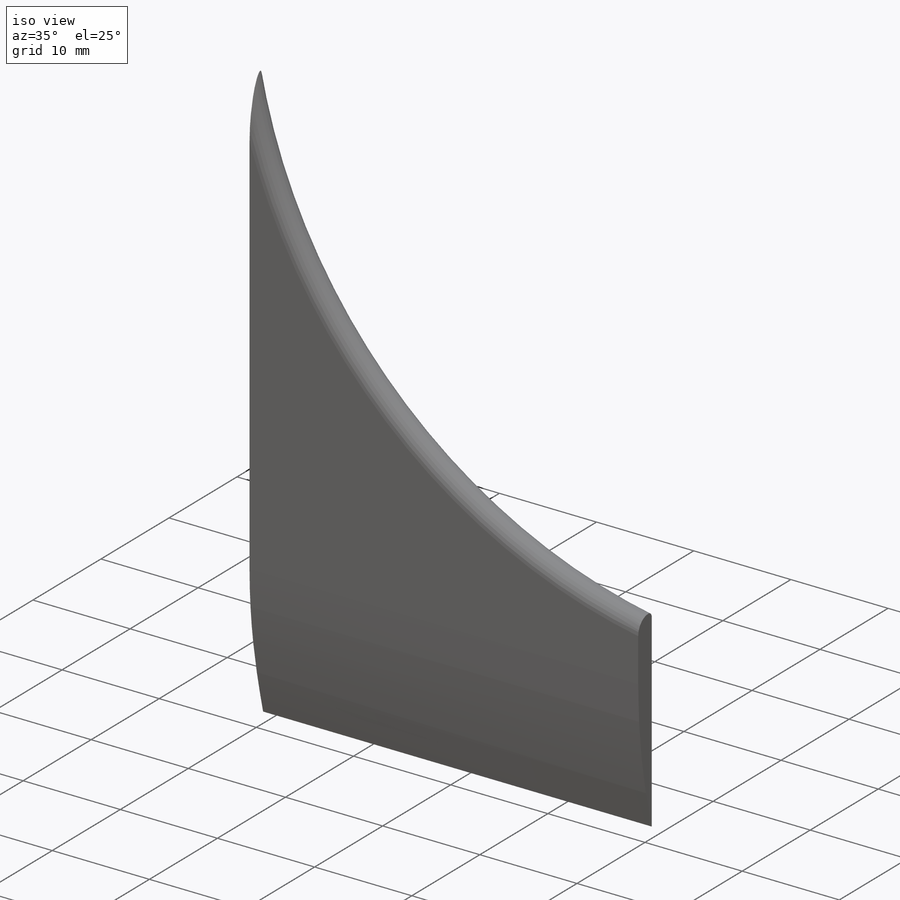
[diagram: iso view]
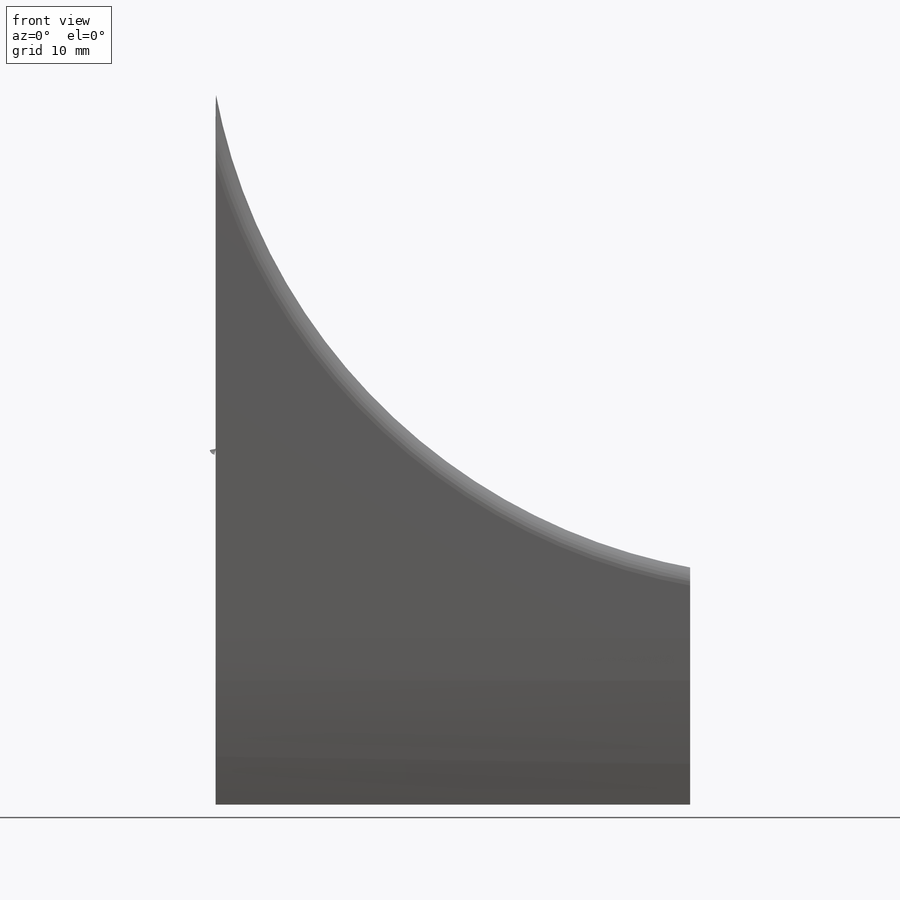
[diagram: front view]
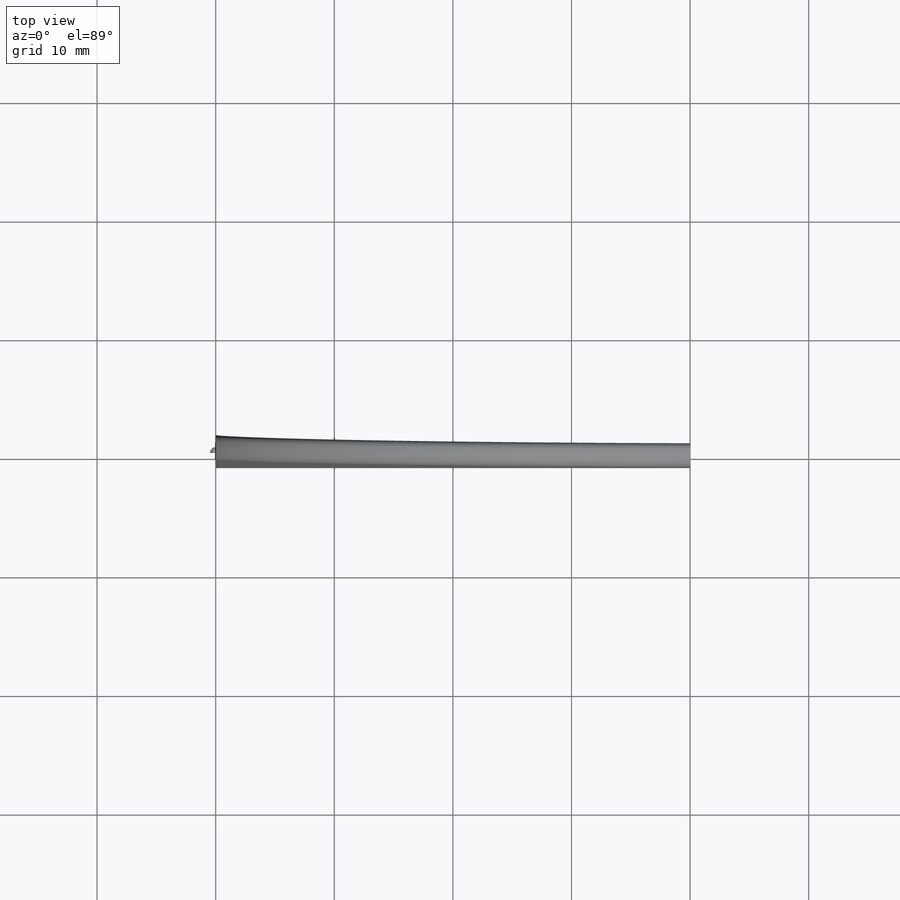
[diagram: top view]
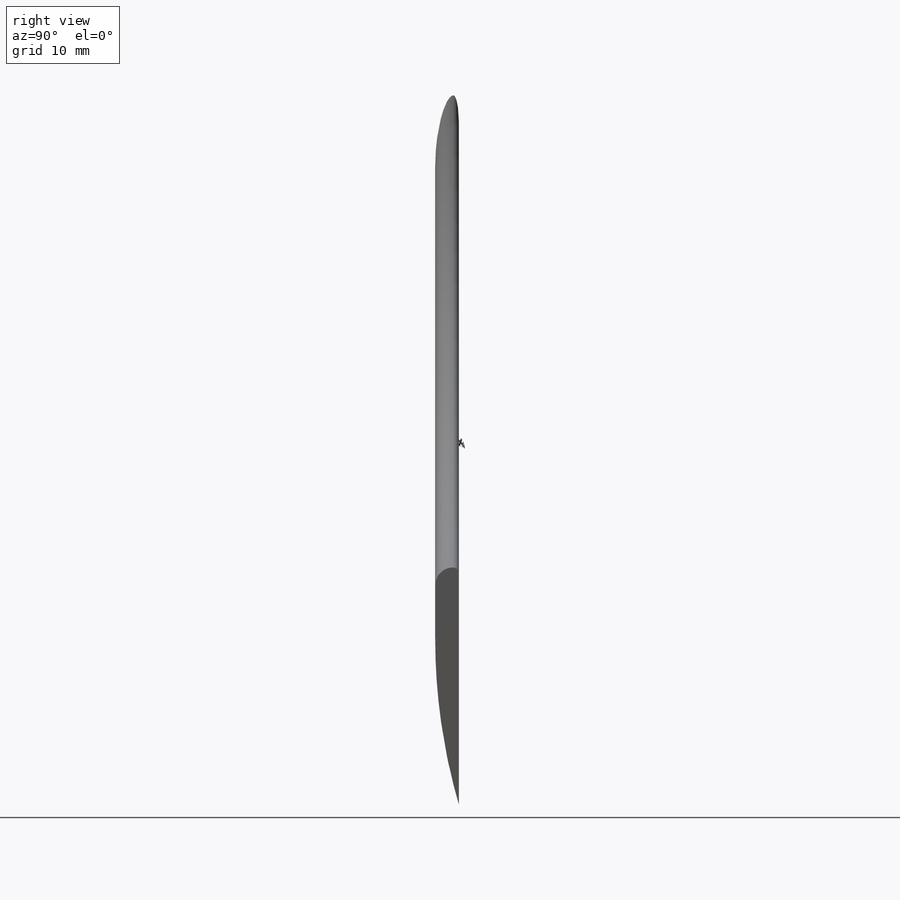
[diagram: right view]
SOLIDWORKS PART (.sldprt)
format: sldprt  version: not decoded by parser v0  size: 180,736 bytes
history: native  units: mm
features: plane x3, fillet x3, sketch x2, material x1, extrude x1, cut_extrude x1 (+10 scaffold rows collapsed)
feature tree (21):
  scaffold x10  (default folders/planes/origin — collapsed)
  material  "A-Glass Fiber"
  plane  "Frontal Plane"
  plane  "Horizontal Plane"
  plane  "Profile Plane"
  sketch  "Sketch1"  dims[c1.D6=250.0mm c1.D7=250.0mm c2.D6=50.0mm c2.D1=30.0mm c2.D2=40.0mm c2.D3=10.0mm c2.D4=20.0mm c2.D5=30.0mm c2.D7=70.0mm]
  extrude  "Boss-Extrude2"  Depth=2mm
  fillet  "Fillet1"  Radius=1.5mm
  fillet  "Fillet2"  Radius=0.5mm
  fillet  "Fillet3"  Radius=50mm
  sketch  "Sketch4"  dims[D1=20.0mm]
  cut_extrude  "Cut-Extrude1"  Depth=2mm
decode coverage: 7 of 7 modeling features carry decoded parameters
note: suppression state not decoded; provenance and decode notes live in map.json
